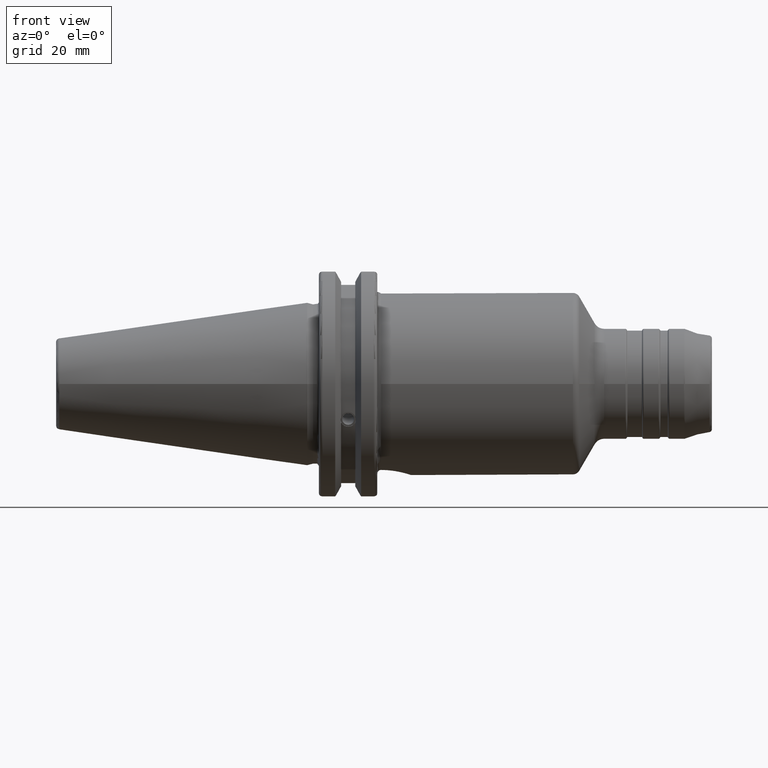
[diagram: clean part render]
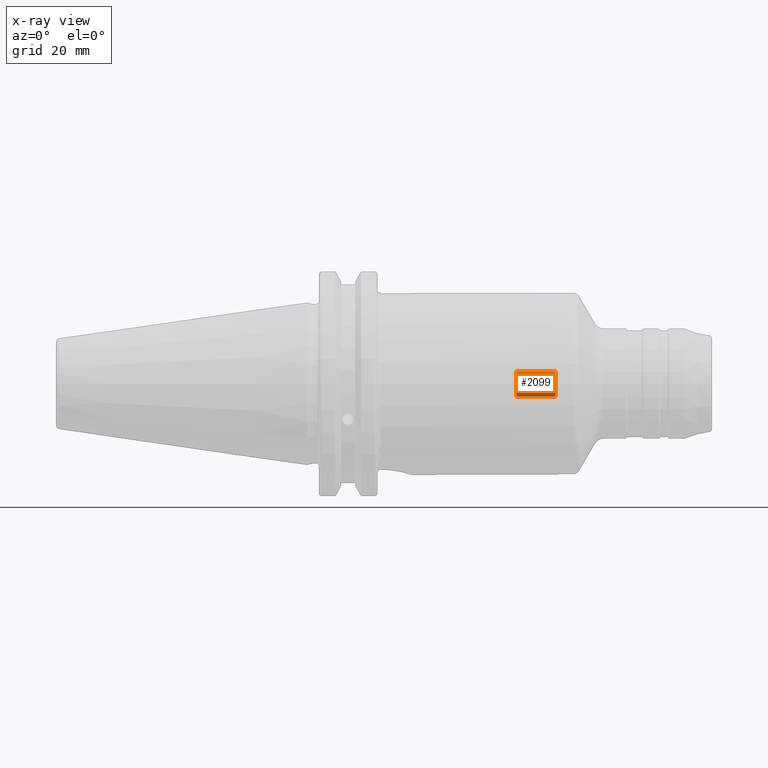
[diagram: x-ray — body ghosted, one internal face saturated and labeled with its STEP entity id]
A machine part, front view, then the same camera in x-ray: the body is ghosted and one INTERNAL B-rep face — a face not visible from any outside direction — is saturated and labeled: STEP entity #2099.
In plain terms, the highlighted cylindrical surface (bore or boss wall) has radius 3.4585 mm, axis along (1, 0, 0).
Its self-contained STEP definition (entity closure, byte-faithful):
#170=FACE_OUTER_BOUND('',#278,.T.);
#278=EDGE_LOOP('',(#1369,#1370,#1371,#1372,#1373,#1374));
#401=LINE('',#3259,#497);
#497=VECTOR('',#2544,3.4585);
#593=CIRCLE('',#2228,3.4585);
#594=CIRCLE('',#2229,3.4585);
#595=CIRCLE('',#2230,3.4585);
#596=CIRCLE('',#2231,3.4585);
#776=VERTEX_POINT('',#3254);
#777=VERTEX_POINT('',#3255);
#778=VERTEX_POINT('',#3258);
#779=VERTEX_POINT('',#3260);
#1022=EDGE_CURVE('',#776,#777,#593,.T.);
#1023=EDGE_CURVE('',#777,#776,#594,.T.);
#1024=EDGE_CURVE('',#777,#778,#401,.T.);
#1025=EDGE_CURVE('',#779,#778,#595,.T.);
#1026=EDGE_CURVE('',#778,#779,#596,.T.);
#1369=ORIENTED_EDGE('',*,*,#1022,.F.);
#1370=ORIENTED_EDGE('',*,*,#1023,.F.);
#1371=ORIENTED_EDGE('',*,*,#1024,.T.);
#1372=ORIENTED_EDGE('',*,*,#1025,.F.);
#1373=ORIENTED_EDGE('',*,*,#1026,.F.);
#1374=ORIENTED_EDGE('',*,*,#1024,.F.);
#2063=CYLINDRICAL_SURFACE('',#2227,3.4585);
#2099=ADVANCED_FACE('',(#170),#2063,.F.);
#2227=AXIS2_PLACEMENT_3D('',#3253,#2538,#2539);
#2228=AXIS2_PLACEMENT_3D('',#3256,#2540,#2541);
#2229=AXIS2_PLACEMENT_3D('',#3257,#2542,#2543);
#2230=AXIS2_PLACEMENT_3D('',#3261,#2545,#2546);
#2231=AXIS2_PLACEMENT_3D('',#3262,#2547,#2548);
#2538=DIRECTION('center_axis',(1.,0.,0.));
#2539=DIRECTION('ref_axis',(0.,0.,-1.));
#2540=DIRECTION('center_axis',(-1.,0.,0.));
#2541=DIRECTION('ref_axis',(0.,0.,-1.));
#2542=DIRECTION('center_axis',(-1.,0.,0.));
#2543=DIRECTION('ref_axis',(0.,0.,-1.));
#2544=DIRECTION('',(-1.,0.,0.));
#2545=DIRECTION('center_axis',(1.,0.,0.));
#2546=DIRECTION('ref_axis',(0.,0.,-1.));
#2547=DIRECTION('center_axis',(1.,0.,0.));
#2548=DIRECTION('ref_axis',(0.,0.,-1.));
#3253=CARTESIAN_POINT('Origin',(-131.339965047031,0.,0.));
#3254=CARTESIAN_POINT('',(67.5,0.,-3.4585));
#3255=CARTESIAN_POINT('',(67.5,-4.23544095485112E-16,3.4585));
#3256=CARTESIAN_POINT('Origin',(67.5,0.,0.));
#3257=CARTESIAN_POINT('Origin',(67.5,0.,0.));
#3258=CARTESIAN_POINT('',(56.8757963347172,-4.23544095485112E-16,3.4585));
#3259=CARTESIAN_POINT('',(-131.339965047031,-4.23544095485112E-16,3.4585));
#3260=CARTESIAN_POINT('',(56.8757963347172,-4.2354409548511E-16,-3.45849999999998));
#3261=CARTESIAN_POINT('Origin',(56.8757963347172,0.,0.));
#3262=CARTESIAN_POINT('Origin',(56.8757963347172,0.,0.));